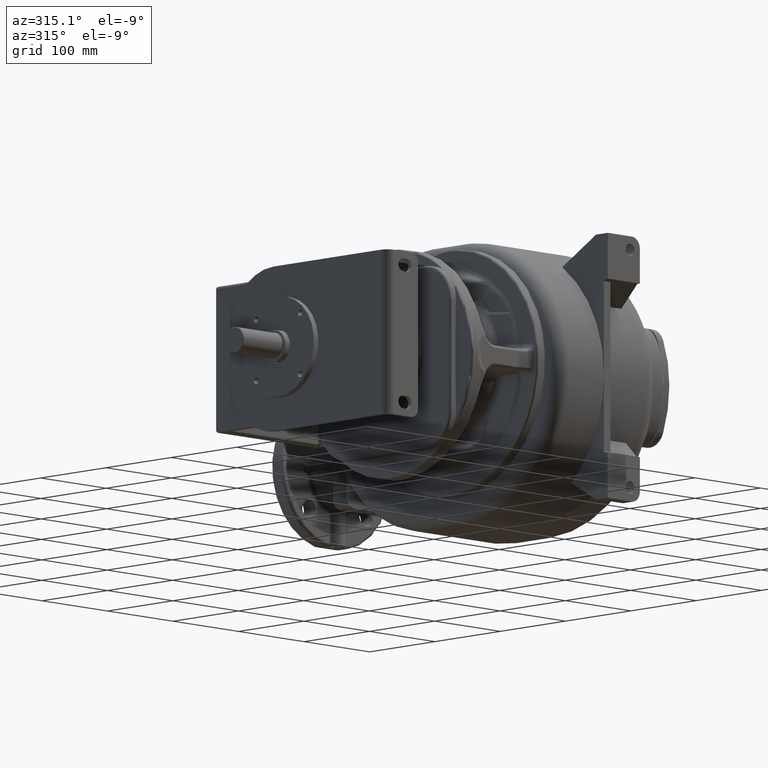
[diagram: clean part render]
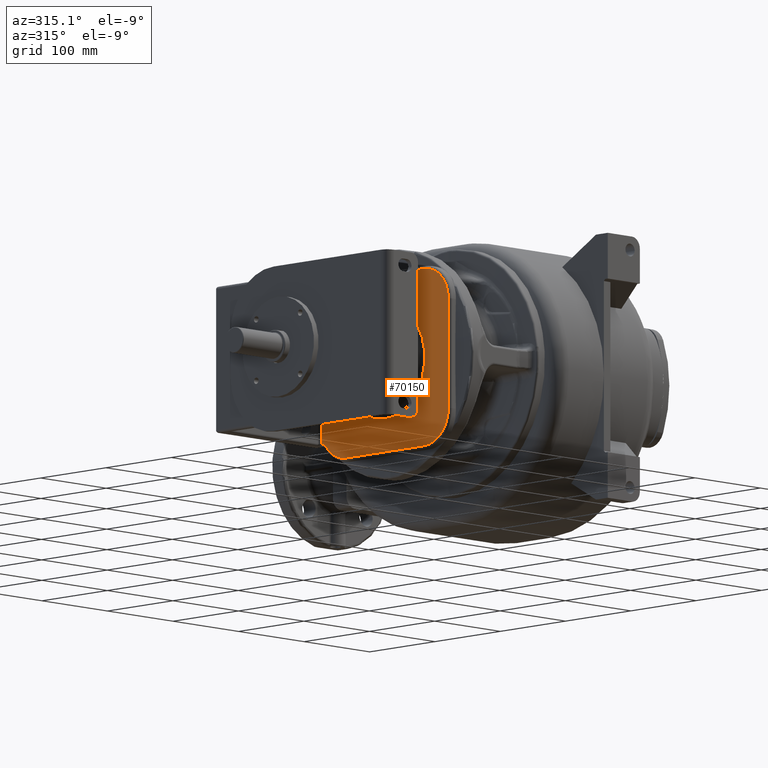
[diagram: same view with one face highlighted and labeled with its STEP entity id]
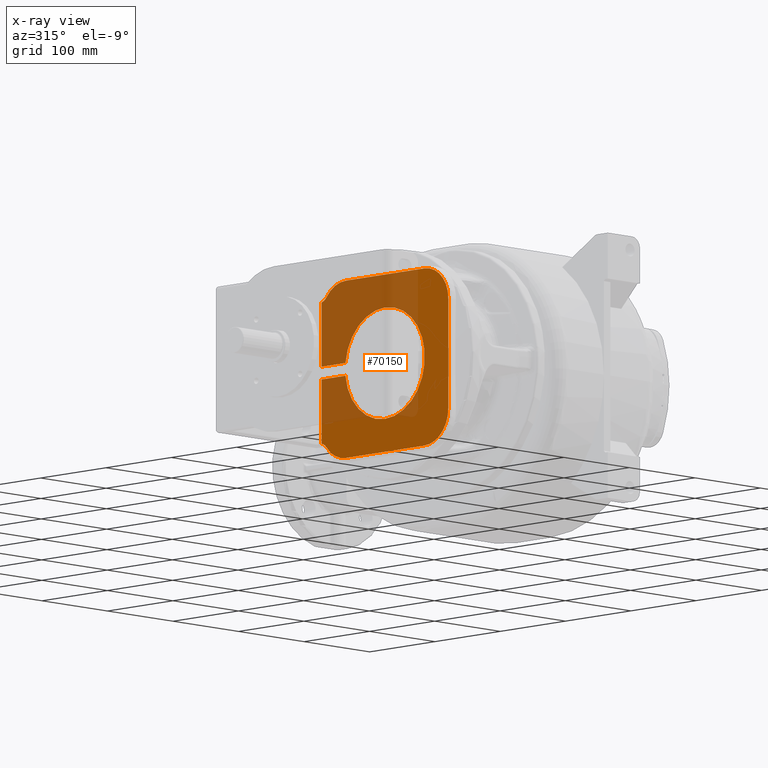
[diagram: x-ray of the same camera — body ghosted, the highlighted face saturated]
A machine part, auxiliary view. The second image highlights one B-rep face of the part: STEP entity #70150.
The next image is the same camera in x-ray: the body ghosted, the highlighted face saturated — about 45% of this face is hidden behind the body in this view.
In plain terms, the highlighted planar face has unit normal (1, 0, 0).
Its self-contained STEP definition (entity closure, byte-faithful):
#24465=DIRECTION('',(-6.578932705475E-11,-1.E0,0.E0));
#24466=VECTOR('',#24465,3.640297037011E1);
#24467=CARTESIAN_POINT('',(-2.145E2,2.57E2,-7.E0));
#24468=LINE('',#24467,#24466);
#24469=DIRECTION('',(6.578932705475E-11,1.E0,0.E0));
#24470=VECTOR('',#24469,3.640297037011E1);
#24471=CARTESIAN_POINT('',(-2.145000000024E2,2.205970296299E2,7.E0));
#24472=LINE('',#24471,#24470);
#24473=DIRECTION('',(-8.555977787070E-11,0.E0,1.E0));
#24474=VECTOR('',#24473,7.035088935933E1);
#24475=CARTESIAN_POINT('',(-2.145E2,2.57E2,7.E0));
#24476=LINE('',#24475,#24474);
#24477=CARTESIAN_POINT('',(-2.145E2,2.6E2,9.E1));
#24478=DIRECTION('',(1.E0,0.E0,0.E0));
#24479=DIRECTION('',(0.E0,-8.E-1,-6.E-1));
#24480=AXIS2_PLACEMENT_3D('',#24477,#24478,#24479);
#24482=CARTESIAN_POINT('',(-2.145E2,2.2E2,6.E1));
#24483=DIRECTION('',(-1.E0,0.E0,0.E0));
#24484=DIRECTION('',(0.E0,0.E0,1.E0));
#24485=AXIS2_PLACEMENT_3D('',#24482,#24483,#24484);
#24487=DIRECTION('',(0.E0,1.E0,0.E0));
#24488=VECTOR('',#24487,1.2E2);
#24489=CARTESIAN_POINT('',(-2.145E2,1.E2,9.7E1));
#24490=LINE('',#24489,#24488);
#24491=CARTESIAN_POINT('',(-2.145E2,1.E2,6.E1));
#24492=DIRECTION('',(-1.E0,0.E0,0.E0));
#24493=DIRECTION('',(0.E0,-1.E0,0.E0));
#24494=AXIS2_PLACEMENT_3D('',#24491,#24492,#24493);
#24496=DIRECTION('',(0.E0,0.E0,1.E0));
#24497=VECTOR('',#24496,1.2E2);
#24498=CARTESIAN_POINT('',(-2.145E2,6.3E1,-6.E1));
#24499=LINE('',#24498,#24497);
#24500=CARTESIAN_POINT('',(-2.145E2,1.E2,-6.E1));
#24501=DIRECTION('',(-1.E0,0.E0,0.E0));
#24502=DIRECTION('',(0.E0,0.E0,-1.E0));
#24503=AXIS2_PLACEMENT_3D('',#24500,#24501,#24502);
#24505=DIRECTION('',(0.E0,-1.E0,0.E0));
#24506=VECTOR('',#24505,1.2E2);
#24507=CARTESIAN_POINT('',(-2.145E2,2.2E2,-9.7E1));
#24508=LINE('',#24507,#24506);
#24509=CARTESIAN_POINT('',(-2.145E2,2.2E2,-6.E1));
#24510=DIRECTION('',(-1.E0,0.E0,0.E0));
#24511=DIRECTION('',(0.E0,8.E-1,-6.E-1));
#24512=AXIS2_PLACEMENT_3D('',#24509,#24510,#24511);
#24514=CARTESIAN_POINT('',(-2.145E2,2.6E2,-9.E1));
#24515=DIRECTION('',(1.E0,0.E0,0.E0));
#24516=DIRECTION('',(0.E0,-2.307692307692E-1,9.730085108210E-1));
#24517=AXIS2_PLACEMENT_3D('',#24514,#24515,#24516);
#24519=DIRECTION('',(8.531737829603E-11,0.E0,1.E0));
#24520=VECTOR('',#24519,7.035088935933E1);
#24521=CARTESIAN_POINT('',(-2.145000000060E2,2.57E2,-7.735088935933E1));
#24522=LINE('',#24521,#24520);
#26262=CARTESIAN_POINT('',(-2.145000000024E2,2.205970296299E2,7.E0));
#26264=CARTESIAN_POINT('',(-2.145E2,1.6E2,0.E0));
#26265=DIRECTION('',(1.E0,0.E0,0.E0));
#26266=DIRECTION('',(0.E0,9.933939283632E-1,1.147540983628E-1));
#26267=AXIS2_PLACEMENT_3D('',#26264,#26265,#26266);
#35674=CARTESIAN_POINT('',(-2.145E2,6.3E1,6.E1));
#35675=CARTESIAN_POINT('',(-2.145E2,1.E2,9.7E1));
#35676=VERTEX_POINT('',#35674);
#35677=VERTEX_POINT('',#35675);
#35682=CARTESIAN_POINT('',(-2.145E2,2.2E2,9.7E1));
#35683=VERTEX_POINT('',#35682);
#35686=CARTESIAN_POINT('',(-2.145E2,2.496E2,8.22E1));
#35687=VERTEX_POINT('',#35686);
#35690=CARTESIAN_POINT('',(-2.145E2,2.496E2,-8.22E1));
#35691=CARTESIAN_POINT('',(-2.145E2,2.2E2,-9.7E1));
#35692=VERTEX_POINT('',#35690);
#35693=VERTEX_POINT('',#35691);
#35698=CARTESIAN_POINT('',(-2.145E2,1.E2,-9.7E1));
#35699=VERTEX_POINT('',#35698);
#35702=CARTESIAN_POINT('',(-2.145E2,6.3E1,-6.E1));
#35703=VERTEX_POINT('',#35702);
#35746=CARTESIAN_POINT('',(-2.145E2,2.57E2,-7.735088935933E1));
#35747=VERTEX_POINT('',#35746);
#35750=CARTESIAN_POINT('',(-2.145E2,2.57E2,7.735088935933E1));
#35751=VERTEX_POINT('',#35750);
#35772=CARTESIAN_POINT('',(-2.145E2,2.57E2,-7.E0));
#35773=CARTESIAN_POINT('',(-2.145000000024E2,2.205970296299E2,-7.E0));
#35774=VERTEX_POINT('',#35772);
#35775=VERTEX_POINT('',#35773);
#35802=VERTEX_POINT('',#26262);
#35803=CARTESIAN_POINT('',(-2.145E2,2.57E2,7.E0));
#35804=VERTEX_POINT('',#35803);
#70116=CARTESIAN_POINT('',(-2.145E2,1.6E2,0.E0));
#70117=DIRECTION('',(1.E0,0.E0,0.E0));
#70118=DIRECTION('',(0.E0,0.E0,1.E0));
#70119=AXIS2_PLACEMENT_3D('',#70116,#70117,#70118);
#70120=PLANE('',#70119);
#70122=ORIENTED_EDGE('',*,*,#70121,.T.);
#70124=ORIENTED_EDGE('',*,*,#70123,.F.);
#70126=ORIENTED_EDGE('',*,*,#70125,.T.);
#70128=ORIENTED_EDGE('',*,*,#70127,.T.);
#70130=ORIENTED_EDGE('',*,*,#70129,.F.);
#70132=ORIENTED_EDGE('',*,*,#70131,.F.);
#70134=ORIENTED_EDGE('',*,*,#70133,.F.);
#70136=ORIENTED_EDGE('',*,*,#70135,.F.);
#70137=ORIENTED_EDGE('',*,*,#70106,.F.);
#70139=ORIENTED_EDGE('',*,*,#70138,.F.);
#70141=ORIENTED_EDGE('',*,*,#70140,.F.);
#70143=ORIENTED_EDGE('',*,*,#70142,.F.);
#70145=ORIENTED_EDGE('',*,*,#70144,.F.);
#70147=ORIENTED_EDGE('',*,*,#70146,.T.);
#70148=EDGE_LOOP('',(#70122,#70124,#70126,#70128,#70130,#70132,#70134,#70136,
#70137,#70139,#70141,#70143,#70145,#70147));
#70149=FACE_OUTER_BOUND('',#70148,.F.);
#70150=ADVANCED_FACE('',(#70149),#70120,.F.);
#24481=CIRCLE('',#24480,1.3E1);
#24486=CIRCLE('',#24485,3.7E1);
#24495=CIRCLE('',#24494,3.7E1);
#24504=CIRCLE('',#24503,3.7E1);
#24513=CIRCLE('',#24512,3.7E1);
#24518=CIRCLE('',#24517,1.3E1);
#26268=CIRCLE('',#26267,6.1E1);
#70106=EDGE_CURVE('',#35703,#35676,#24499,.T.);
#70121=EDGE_CURVE('',#35774,#35775,#24468,.T.);
#70123=EDGE_CURVE('',#35802,#35775,#26268,.T.);
#70125=EDGE_CURVE('',#35802,#35804,#24472,.T.);
#70127=EDGE_CURVE('',#35804,#35751,#24476,.T.);
#70129=EDGE_CURVE('',#35687,#35751,#24481,.T.);
#70131=EDGE_CURVE('',#35683,#35687,#24486,.T.);
#70133=EDGE_CURVE('',#35677,#35683,#24490,.T.);
#70135=EDGE_CURVE('',#35676,#35677,#24495,.T.);
#70138=EDGE_CURVE('',#35699,#35703,#24504,.T.);
#70140=EDGE_CURVE('',#35693,#35699,#24508,.T.);
#70142=EDGE_CURVE('',#35692,#35693,#24513,.T.);
#70144=EDGE_CURVE('',#35747,#35692,#24518,.T.);
#70146=EDGE_CURVE('',#35747,#35774,#24522,.T.);